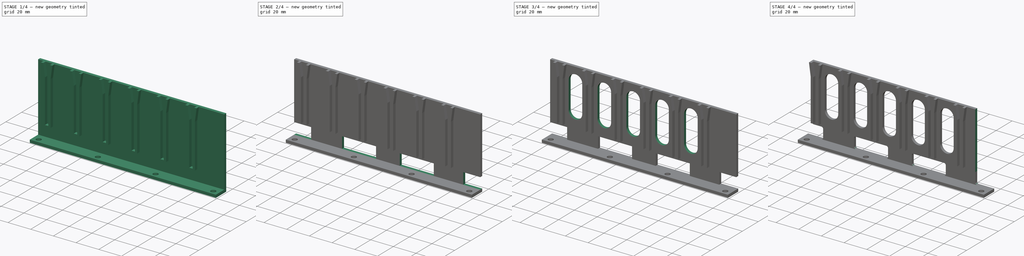
[diagram: build sequence overview — one tinted view per stage of 4, left to right]
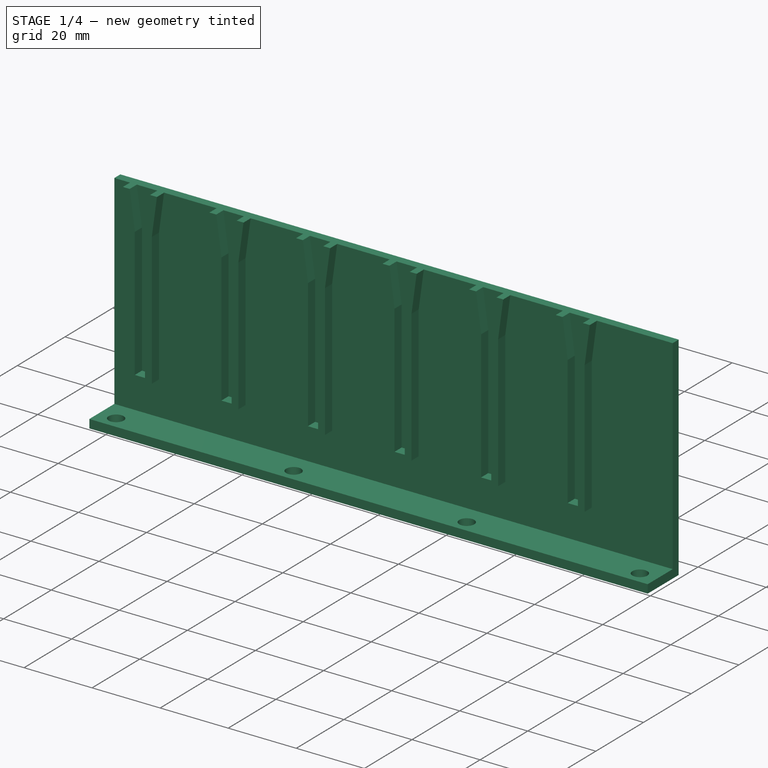
[diagram: stage 1 of 4 — iso view after this stage's code; geometry added in this stage tinted green]
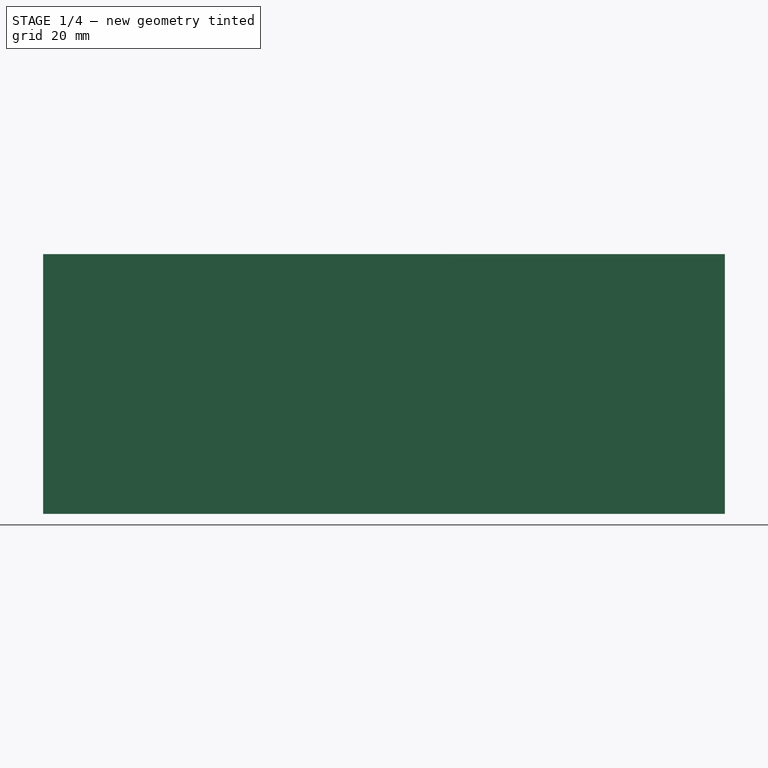
[diagram: stage 1 of 4 — front view after this stage's code; geometry added in this stage tinted green]
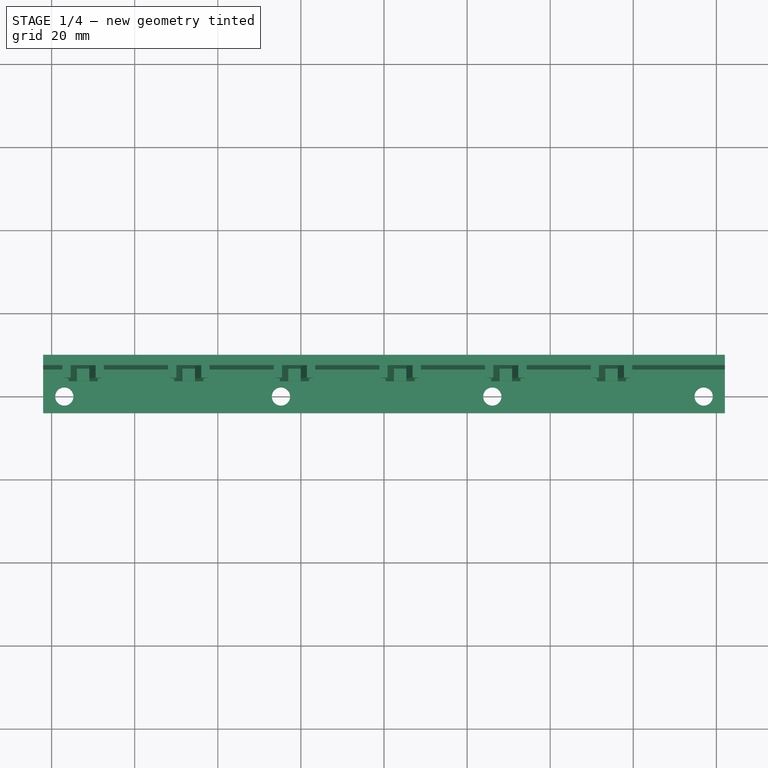
[diagram: stage 1 of 4 — top view after this stage's code; geometry added in this stage tinted green]
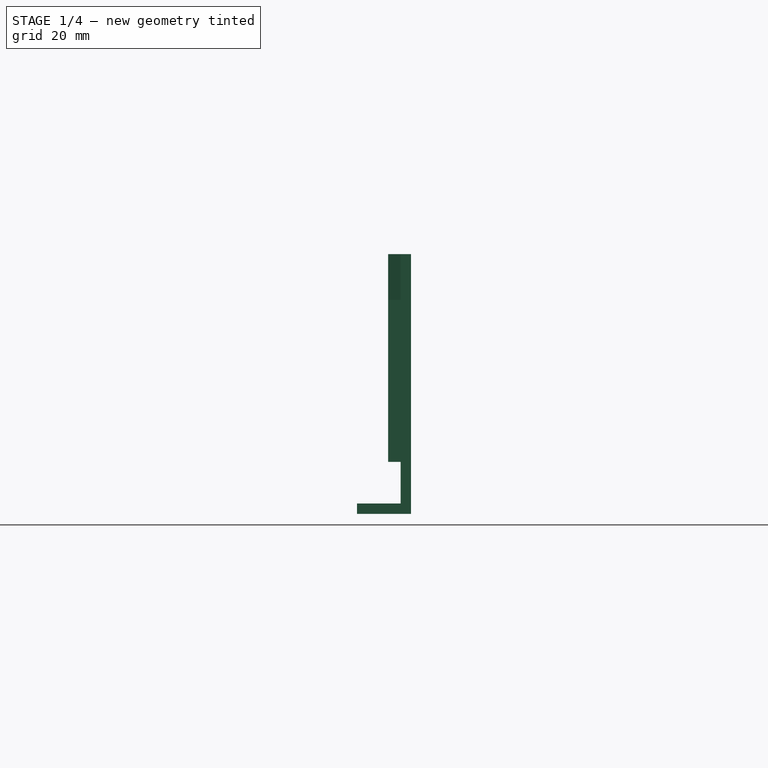
[diagram: stage 1 of 4 — right view after this stage's code; geometry added in this stage tinted green]
FCSTD DOCUMENT  (FreeCAD 0.16R6712 (Git))
Label: Taller Card Guide
License: All rights reserved
LicenseURL: http://en.wikipedia.org/wiki/All_rights_reserved
objects: Sketcher::SketchObject×6, PartDesign::Pocket×4, PartDesign::Pad×2, PartDesign::Fillet×2, Part::Feature×1, Part::FeaturePython×1, Part::MultiFuse×1, PartDesign::LinearPattern×1
note: 24 computed .brp shape members not serialized (recipe doc carries the construction recipe); baked Part::Feature solids carry a one-line shape summary decoded from their .brp

FEATURE [Sketcher::SketchObject] Sketch
  sketch-geometry (9):
    g0: LineSegment StartX=-82.0311 StartY=9 StartZ=0 EndX=82.0311 EndY=9 EndZ=0
    g1: LineSegment StartX=82.0311 StartY=9 StartZ=0 EndX=82.0311 EndY=-4 EndZ=0
    g2: LineSegment StartX=82.0311 StartY=-4 StartZ=0 EndX=-82.0311 EndY=-4 EndZ=0
    g3: LineSegment StartX=-82.0311 StartY=-4 StartZ=0 EndX=-82.0311 EndY=9 EndZ=0
    g4: LineSegment [constr] StartX=-82.0311 StartY=0 StartZ=0 EndX=82.0311 EndY=0 EndZ=0
    g5: Circle CenterX=-76.9439 CenterY=0 CenterZ=0 NormalX=0 NormalY=0 NormalZ=1 Radius=2.2
    g6: Circle CenterX=-24.8001 CenterY=0 CenterZ=0 NormalX=0 NormalY=0 NormalZ=1 Radius=2.2
    g7: Circle CenterX=26.0719 CenterY=0 CenterZ=0 NormalX=0 NormalY=0 NormalZ=1 Radius=2.2
    g8: Circle CenterX=76.9439 CenterY=0 CenterZ=0 NormalX=0 NormalY=0 NormalZ=1 Radius=2.2
  constraints (27):
    c: Coincident(g0,g1)
    c: Coincident(g1,g2)
    c: Coincident(g2,g3)
    c: Coincident(g3,g0)
    c: Horizontal(g0)
    c: Horizontal(g2)
    c: Vertical(g1)
    c: Vertical(g3)
    c: Perpendicular(g4,g3) = 1.5708
    c: PointOnObject(g4,g1)
    c: Equal(g5,g6)
    c: Equal(g6,g7)
    c: Equal(g7,g8)
    c: Radius(g5) = 2.2
    c: DistanceY(g4,g2) = -4
    c: PointOnObject(g5,g4)
    c: PointOnObject(g6,g4)
    c: PointOnObject(g7,g4)
    c: PointOnObject(g8,g4)
    c: Symmetric(g2,g1,g-2)
    c: PointOnObject(g4,g-1)
    c: DistanceY(g4,g0) = 9
    c: DistanceX(g5,g2) = -5.0872
    c: DistanceX(g6,g2) = -57.231
    c: DistanceX(g7,g2) = -108.103
    c: DistanceX(g8,g2) = -158.975
    c: DistanceX(g1,g8) = -5.0872
FEATURE [PartDesign::Pad] Pad
  Length = 2.5
  Length2 = 100
  Sketch = -> Sketch
  Type = 0
FEATURE [Sketcher::SketchObject] Sketch001
  ExternalGeometry = -> [Pad]
  Placement = pos=(0,0,2.5) rot=(0,0,1;0rad)
  Support = -> Pad [Face10]
  sketch-geometry (4):
    g0: LineSegment StartX=-82.0311 StartY=9 StartZ=0 EndX=82.0311 EndY=9 EndZ=0
    g1: LineSegment StartX=82.0311 StartY=9 StartZ=0 EndX=82.0311 EndY=6.5 EndZ=0
    g2: LineSegment StartX=82.0311 StartY=6.5 StartZ=0 EndX=-82.0311 EndY=6.5 EndZ=0
    g3: LineSegment StartX=-82.0311 StartY=6.5 StartZ=0 EndX=-82.0311 EndY=9 EndZ=0
  constraints (11):
    c: Coincident(g0,g1)
    c: Coincident(g1,g2)
    c: Coincident(g2,g3)
    c: Coincident(g3,g0)
    c: Horizontal(g0)
    c: Horizontal(g2)
    c: Vertical(g1)
    c: Vertical(g3)
    c: Distance(g1) = 2.5
    c: Coincident(g0,g-3)
    c: Symmetric(g0,g0,g-2)
FEATURE [PartDesign::Pad] Pad001
  Length = 60
  Length2 = 100
  Sketch = -> Sketch001
  Type = 0
FEATURE [Part::Feature] Part__Feature  label="Deeper Guide Vee"
  Placement = pos=(-72.4208,7.5,13.5) rot=(0,0,1;0rad)
  shape: bbox 10 x 4 x 50 mm, 14 faces (baked)
FEATURE [Part::FeaturePython] Array  # Draft array (typed FeaturePython)
  Angle = 360
  ArrayType = 0
  Axis = (0,0,1)
  Base = -> Part__Feature
  Center = (0,0,0)
  Fuse = false
  IntervalAxis = (0,0,0)
  IntervalX = (25.436,0,0)
  IntervalY = (0,1,0)
  IntervalZ = (0,0,0)
  NumberPolar = 1
  NumberX = 6
  NumberY = 1
  NumberZ = 1
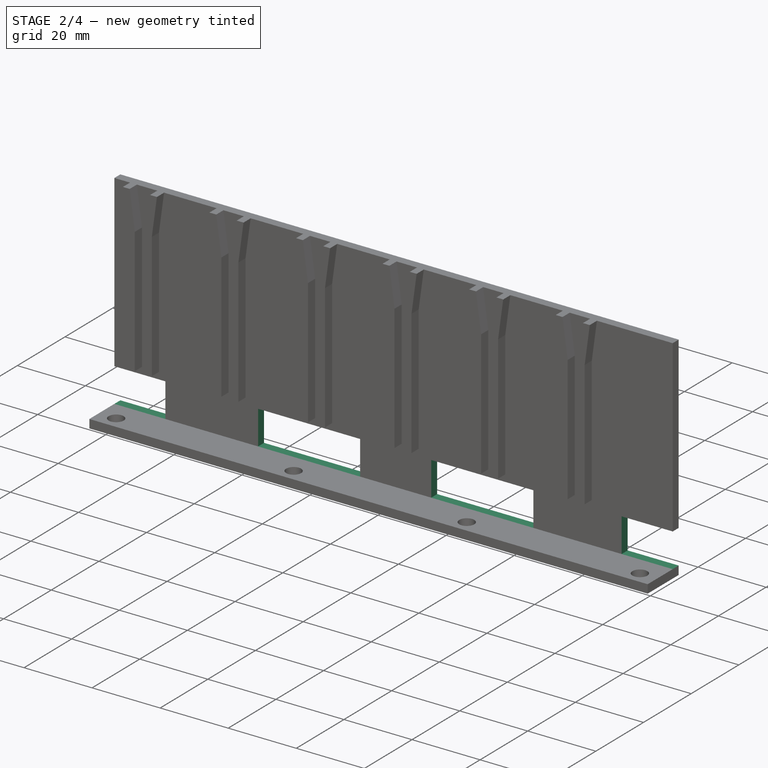
[diagram: stage 2 of 4 — iso view after this stage's code; geometry added in this stage tinted green]
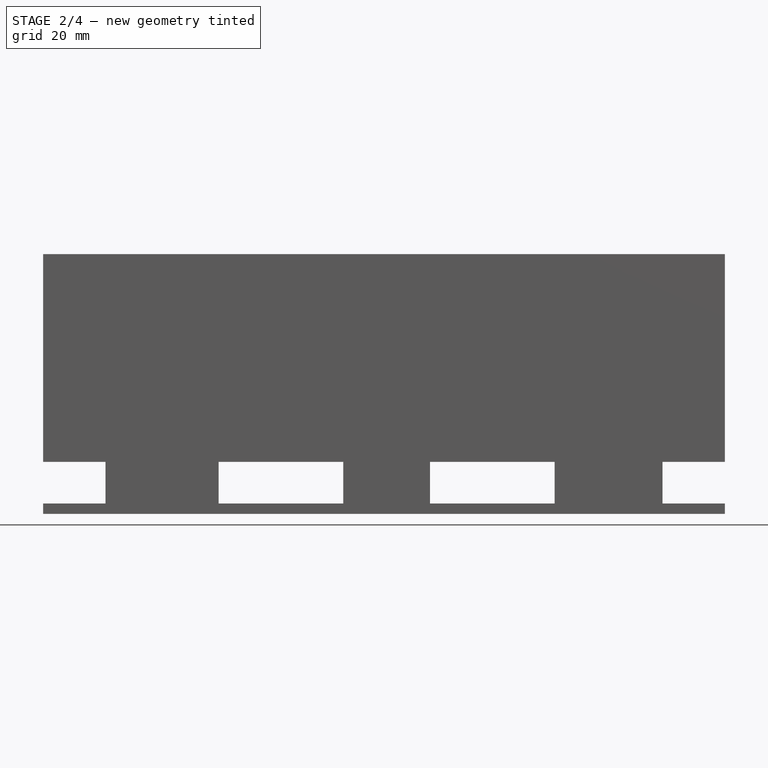
[diagram: stage 2 of 4 — front view after this stage's code; geometry added in this stage tinted green]
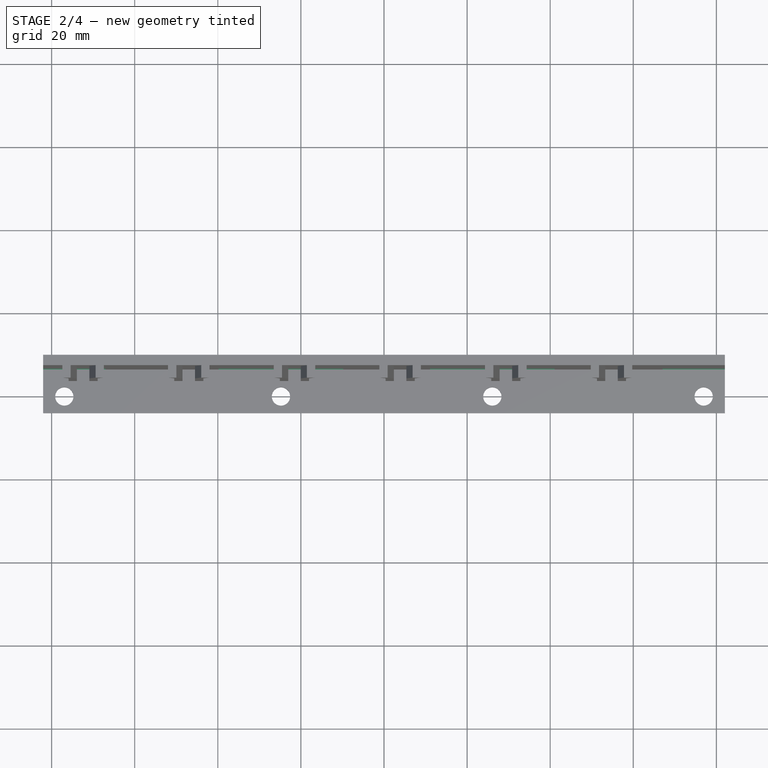
[diagram: stage 2 of 4 — top view after this stage's code; geometry added in this stage tinted green]
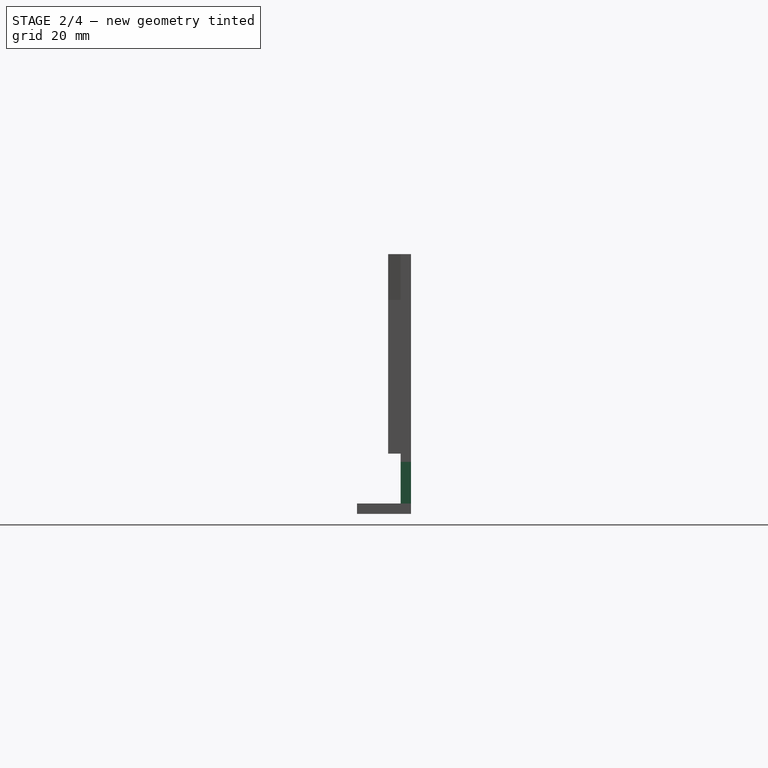
[diagram: stage 2 of 4 — right view after this stage's code; geometry added in this stage tinted green]
FEATURE [Sketcher::SketchObject] Sketch002
  ExternalGeometry = -> [Pad001]
  Placement = pos=(0,6.5,0) rot=(1,0,0;1.5708rad)
  Support = -> Pad001 [Face15]
  sketch-geometry (20):
    g0: LineSegment StartX=67.0311 StartY=12.5 StartZ=0 EndX=97.0311 EndY=12.5 EndZ=0
    g1: LineSegment StartX=97.0311 StartY=12.5 StartZ=0 EndX=97.0311 EndY=2.5 EndZ=0
    g2: LineSegment StartX=97.0311 StartY=2.5 StartZ=0 EndX=67.0311 EndY=2.5 EndZ=0
    g3: LineSegment StartX=67.0311 StartY=2.5 StartZ=0 EndX=67.0311 EndY=12.5 EndZ=0
    g4: LineSegment StartX=11.0719 StartY=12.5 StartZ=0 EndX=41.0719 EndY=12.5 EndZ=0
    g5: LineSegment StartX=41.0719 StartY=12.5 StartZ=0 EndX=41.0719 EndY=2.5 EndZ=0
    g6: LineSegment StartX=41.0719 StartY=2.5 StartZ=0 EndX=11.0719 EndY=2.5 EndZ=0
    g7: LineSegment StartX=11.0719 StartY=2.5 StartZ=0 EndX=11.0719 EndY=12.5 EndZ=0
    g8: LineSegment StartX=-39.8001 StartY=12.5 StartZ=0 EndX=-9.8001 EndY=12.5 EndZ=0
    g9: LineSegment StartX=-9.8001 StartY=12.5 StartZ=0 EndX=-9.8001 EndY=2.5 EndZ=0
    g10: LineSegment StartX=-9.8001 StartY=2.5 StartZ=0 EndX=-39.8001 EndY=2.5 EndZ=0
    g11: LineSegment StartX=-39.8001 StartY=2.5 StartZ=0 EndX=-39.8001 EndY=12.5 EndZ=0
    g12: LineSegment StartX=-97.0311 StartY=12.5 StartZ=0 EndX=-67.0311 EndY=12.5 EndZ=0
    g13: LineSegment StartX=-67.0311 StartY=12.5 StartZ=0 EndX=-67.0311 EndY=2.5 EndZ=0
    g14: LineSegment StartX=-67.0311 StartY=2.5 StartZ=0 EndX=-97.0311 EndY=2.5 EndZ=0
    g15: LineSegment StartX=-97.0311 StartY=2.5 StartZ=0 EndX=-97.0311 EndY=12.5 EndZ=0
    g16: LineSegment [constr] StartX=26.0719 StartY=12.5 StartZ=0 EndX=26.0719 EndY=2.5 EndZ=0
    g17: LineSegment [constr] StartX=-24.8001 StartY=12.5 StartZ=0 EndX=-24.8001 EndY=2.5 EndZ=0
    g18: LineSegment [constr] StartX=-82.0311 StartY=12.5 StartZ=0 EndX=-82.0311 EndY=2.5 EndZ=0
    g19: LineSegment [constr] StartX=82.0311 StartY=12.5 StartZ=0 EndX=82.0311 EndY=2.5 EndZ=0
  constraints (59):
    c: Coincident(g0,g1)
    c: Coincident(g1,g2)
    c: Coincident(g2,g3)
    c: Coincident(g3,g0)
    c: Horizontal(g0)
    c: Horizontal(g2)
    c: Vertical(g1)
    c: Vertical(g3)
    c: Distance(g0) = 30
    c: Distance(g3) = 10
    c: Coincident(g4,g5)
    c: Coincident(g5,g6)
    c: Coincident(g6,g7)
    c: Coincident(g7,g4)
    c: Horizontal(g4)
    c: Horizontal(g6)
    c: Vertical(g5)
    c: Vertical(g7)
    c: Coincident(g8,g9)
    c: Coincident(g9,g10)
    c: Coincident(g10,g11)
    c: Coincident(g11,g8)
    c: Horizontal(g8)
    c: Horizontal(g10)
    c: Vertical(g9)
    c: Vertical(g11)
    c: Coincident(g12,g13)
    c: Coincident(g13,g14)
    c: Coincident(g14,g15)
    c: Coincident(g15,g12)
    c: Horizontal(g12)
    c: Horizontal(g14)
    c: Vertical(g13)
    c: Vertical(g15)
    c: Equal(g3,g7)
    c: Equal(g7,g11)
    c: Equal(g11,g15)
    c: Equal(g0,g4)
    c: Equal(g4,g8)
    c: Equal(g8,g12)
    c: Perpendicular(g16,g6) = 4.71239
    c: Perpendicular(g17,g10) = 4.71239
    c: Perpendicular(g18,g14) = 4.71239
    c: PointOnObject(g18,g12)
    c: PointOnObject(g17,g8)
    c: PointOnObject(g16,g4)
    c: Symmetric(g6,g5,g16)
    c: Symmetric(g9,g10,g17)
    c: Symmetric(g14,g13,g18)
    c: DistanceX(g17,g16) = 50.872
    c: Perpendicular(g19,g2) = 4.71239
    c: PointOnObject(g19,g0)
    c: Symmetric(g1,g2,g19)
    c: Coincident(g19,g-3)
    c: PointOnObject(g16,g-3)
    c: PointOnObject(g17,g-3)
    c: PointOnObject(g18,g-3)
    c: Coincident(g18,g-3)
    c: DistanceX(g19,g16) = -55.9592
FEATURE [PartDesign::Pocket] Pocket
  Length = 5
  Sketch = -> Sketch002
  Type = 1
FEATURE [Part::MultiFuse] Fusion
  Shapes = -> [Pocket,Array]
FEATURE [Sketcher::SketchObject] Sketch003
  ExternalGeometry = -> [Fusion]
  Placement = pos=(-75.9208,0,0) rot=(0.57735,-0.57735,-0.57735;2.0944rad)
  Support = -> Fusion [Face80]
  sketch-geometry (4):
    g0: LineSegment StartX=-6.5 StartY=14.5 StartZ=0 EndX=-3.5 EndY=14.5 EndZ=0
    g1: LineSegment StartX=-3.5 StartY=14.5 StartZ=0 EndX=-3.5 EndY=12.5 EndZ=0
    g2: LineSegment StartX=-3.5 StartY=12.5 StartZ=0 EndX=-6.5 EndY=12.5 EndZ=0
    g3: LineSegment StartX=-6.5 StartY=12.5 StartZ=0 EndX=-6.5 EndY=14.5 EndZ=0
  constraints (11):
    c: Coincident(g0,g1)
    c: Coincident(g1,g2)
    c: Coincident(g2,g3)
    c: Coincident(g3,g0)
    c: Horizontal(g0)
    c: Horizontal(g2)
    c: Vertical(g1)
    c: Vertical(g3)
    c: DistanceY(g1) = -2
    c: Coincident(g2,g-3)
    c: Coincident(g-3,g1)
FEATURE [PartDesign::Pocket] Pocket001
  Length = 5
  Sketch = -> Sketch003
  Type = 1
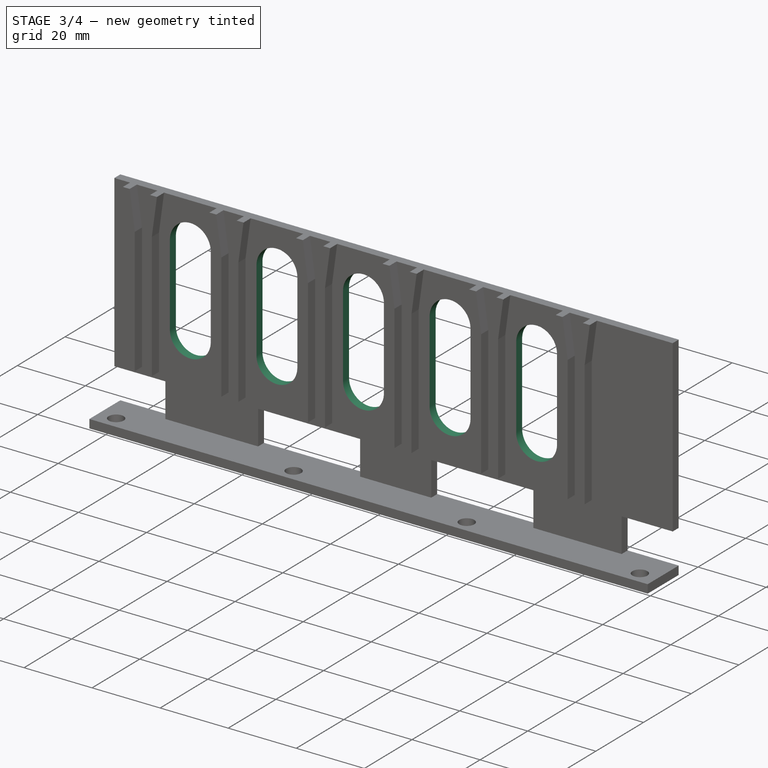
[diagram: stage 3 of 4 — iso view after this stage's code; geometry added in this stage tinted green]
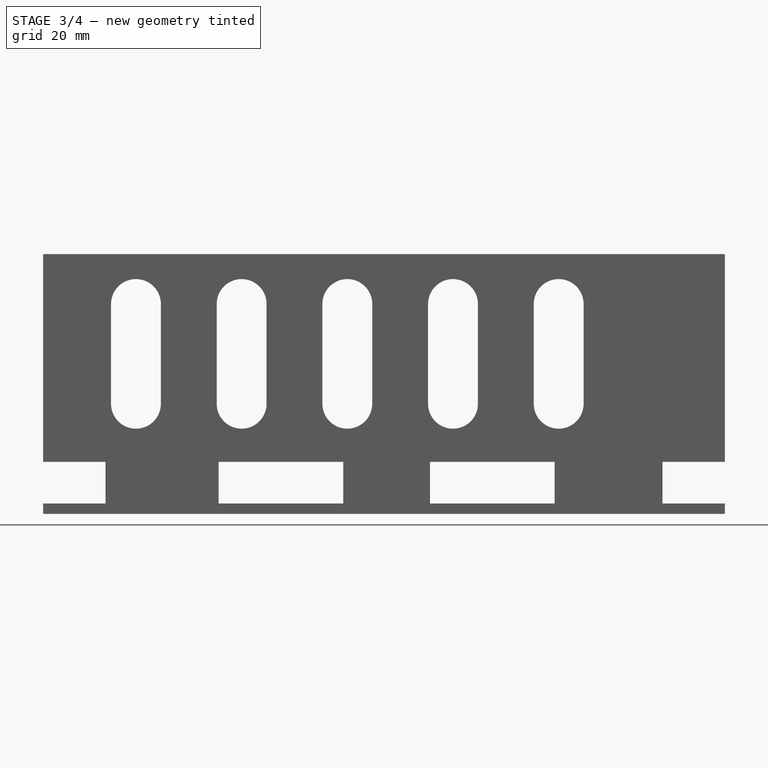
[diagram: stage 3 of 4 — front view after this stage's code; geometry added in this stage tinted green]
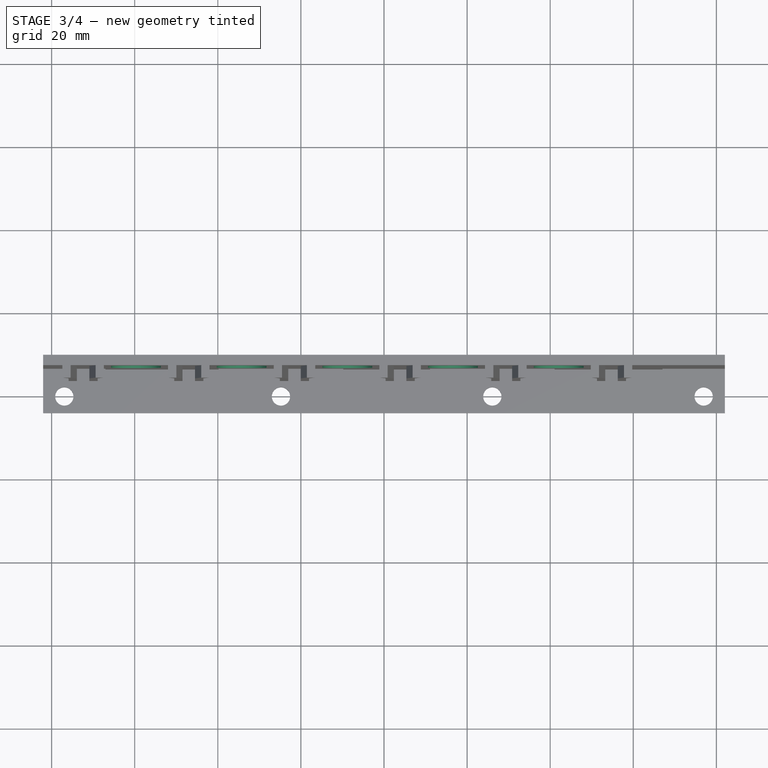
[diagram: stage 3 of 4 — top view after this stage's code; geometry added in this stage tinted green]
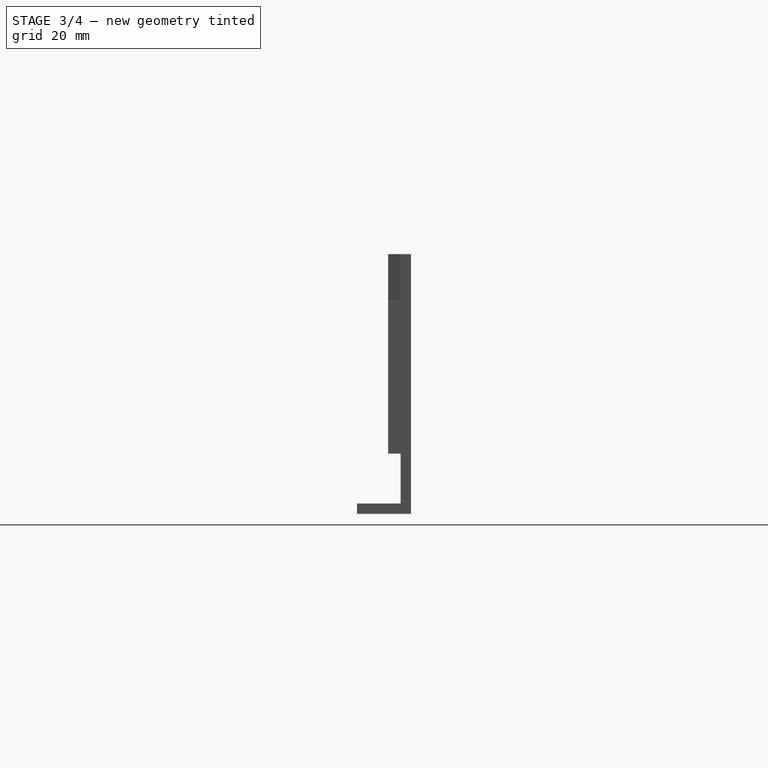
[diagram: stage 3 of 4 — right view after this stage's code; geometry added in this stage tinted green]
FEATURE [Sketcher::SketchObject] Sketch004
  ExternalGeometry = -> [Pocket001]
  Placement = pos=(0,6.5,0) rot=(1,0,0;1.5708rad)
  Support = -> Pocket001 [Face62]
  sketch-geometry (5):
    g0: ArcOfCircle CenterX=-59.7028 CenterY=50.5 CenterZ=0 NormalX=0 NormalY=0 NormalZ=1 Radius=6 StartAngle=0 EndAngle=3.14159
    g1: ArcOfCircle CenterX=-59.7028 CenterY=26.5 CenterZ=0 NormalX=0 NormalY=0 NormalZ=1 Radius=6 StartAngle=3.14159 EndAngle=6.28319
    g2: LineSegment StartX=-65.7028 StartY=50.5 StartZ=0 EndX=-65.7028 EndY=26.5 EndZ=0
    g3: LineSegment StartX=-53.7028 StartY=50.5 StartZ=0 EndX=-53.7028 EndY=26.5 EndZ=0
    g4: LineSegment [constr] StartX=-59.7028 StartY=50.5 StartZ=0 EndX=-59.7028 EndY=26.5 EndZ=0
  constraints (12):
    c: Tangent(g0,g3) = 1.5708
    c: Tangent(g0,g2) = -1.5708
    c: Tangent(g2,g1) = -1.5708
    c: Tangent(g3,g1) = 1.5708
    c: Vertical(g2)
    c: Equal(g0,g1)
    c: Radius(g0) = 6
    c: Coincident(g4,g0)
    c: Coincident(g1,g4)
    c: Symmetric(g-4,g-3,g4)
    c: DistanceY(g-5,g1) = 12
    c: DistanceY(g0,g-6) = 12
FEATURE [PartDesign::Pocket] Pocket002
  Length = 5
  Sketch = -> Sketch004
  Type = 1
FEATURE [PartDesign::LinearPattern] LinearPattern
  Direction = -> Sketch004 [H_Axis]
  Length = 101.744
  Occurrences = 5
  Originals = -> [Pocket002]
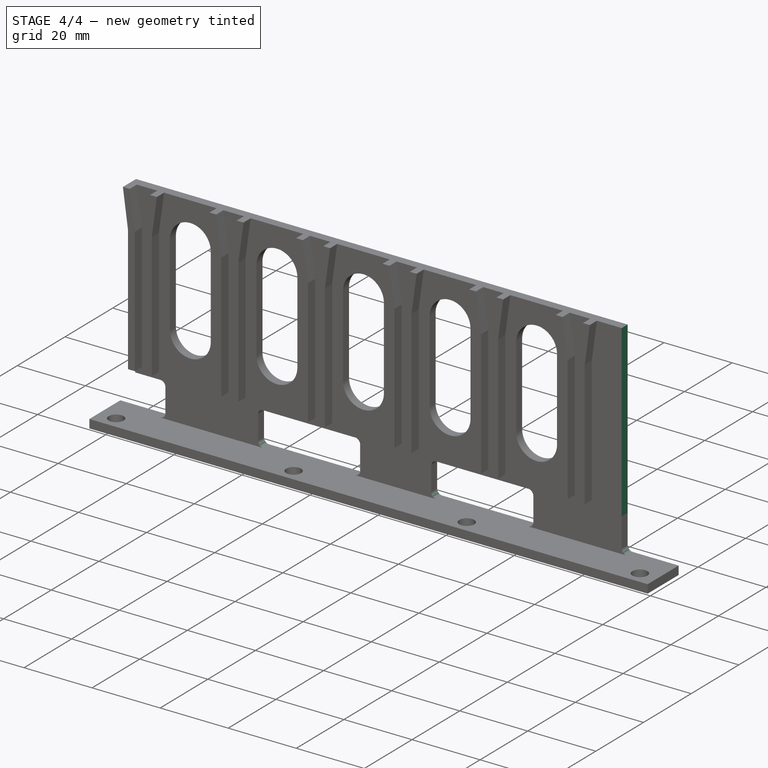
[diagram: stage 4 of 4 — iso view after this stage's code; geometry added in this stage tinted green]
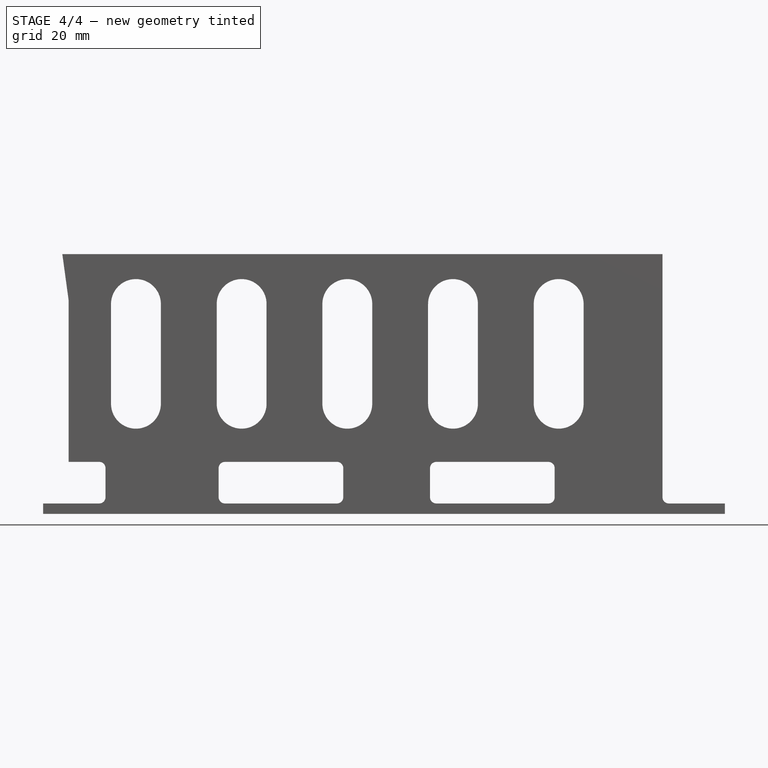
[diagram: stage 4 of 4 — front view after this stage's code; geometry added in this stage tinted green]
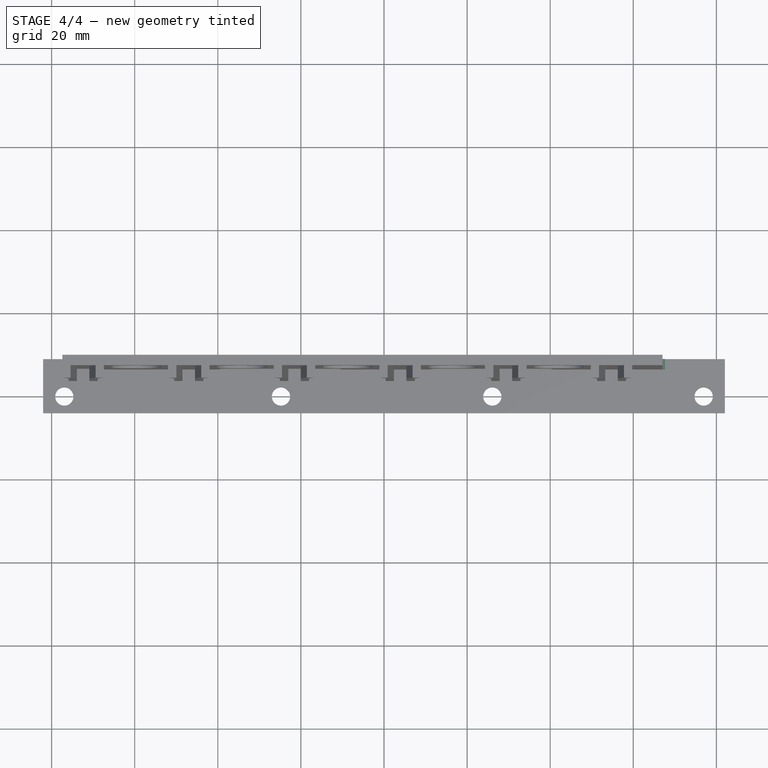
[diagram: stage 4 of 4 — top view after this stage's code; geometry added in this stage tinted green]
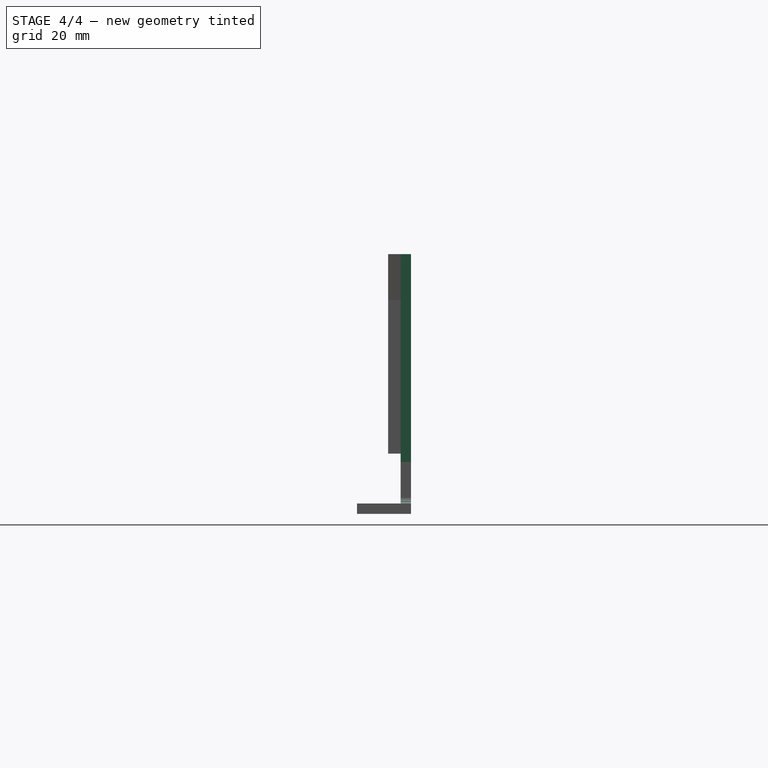
[diagram: stage 4 of 4 — right view after this stage's code; geometry added in this stage tinted green]
FEATURE [Sketcher::SketchObject] Sketch005
  ExternalGeometry = -> [LinearPattern]
  Placement = pos=(0,6.5,0) rot=(1,0,0;1.5708rad)
  Support = -> LinearPattern [Face52]
  sketch-geometry (9):
    g0: LineSegment StartX=-82.0311 StartY=12.5 StartZ=0 EndX=-75.9208 EndY=12.5 EndZ=0
    g1: LineSegment StartX=-75.9208 StartY=12.5 StartZ=0 EndX=-75.9208 EndY=51.5 EndZ=0
    g2: LineSegment StartX=-75.9208 StartY=51.5 StartZ=0 EndX=-77.4208 EndY=62.5 EndZ=0
    g3: LineSegment StartX=-77.4208 StartY=62.5 StartZ=0 EndX=-82.0311 EndY=62.5 EndZ=0
    g4: LineSegment StartX=-82.0311 StartY=62.5 StartZ=0 EndX=-82.0311 EndY=12.5 EndZ=0
    g5: LineSegment StartX=67.0311 StartY=62.5 StartZ=0 EndX=82.0311 EndY=62.5 EndZ=0
    g6: LineSegment StartX=82.0311 StartY=62.5 StartZ=0 EndX=82.0311 EndY=12.5 EndZ=0
    g7: LineSegment StartX=82.0311 StartY=12.5 StartZ=0 EndX=67.0311 EndY=12.5 EndZ=0
    g8: LineSegment StartX=67.0311 StartY=12.5 StartZ=0 EndX=67.0311 EndY=62.5 EndZ=0
  constraints (20):
    c: Coincident(g0,g1)
    c: Coincident(g1,g2)
    c: Coincident(g2,g3)
    c: Coincident(g3,g4)
    c: Coincident(g0,g4)
    c: Coincident(g0,g-7)
    c: Coincident(g-3,g0)
    c: Coincident(g1,g-5)
    c: Coincident(g2,g-4)
    c: Coincident(g-6,g3)
    c: Coincident(g5,g6)
    c: Coincident(g6,g7)
    c: Coincident(g7,g8)
    c: Coincident(g8,g5)
    c: Horizontal(g5)
    c: Horizontal(g7)
    c: Vertical(g6)
    c: Vertical(g8)
    c: Coincident(g-9,g5)
    c: Coincident(g-8,g7)
FEATURE [PartDesign::Pocket] Pocket003
  Length = 5
  Sketch = -> Sketch005
  Type = 1
FEATURE [PartDesign::Fillet] Fillet
  Base = -> Pocket003 [Edge34,Edge72,Edge75,Edge69,Edge74,Edge71]
  Radius = 1.5
FEATURE [PartDesign::Fillet] Fillet001
  Base = -> Fillet [Edge96,Edge168,Edge178,Edge182,Edge162]
  Radius = 1.5
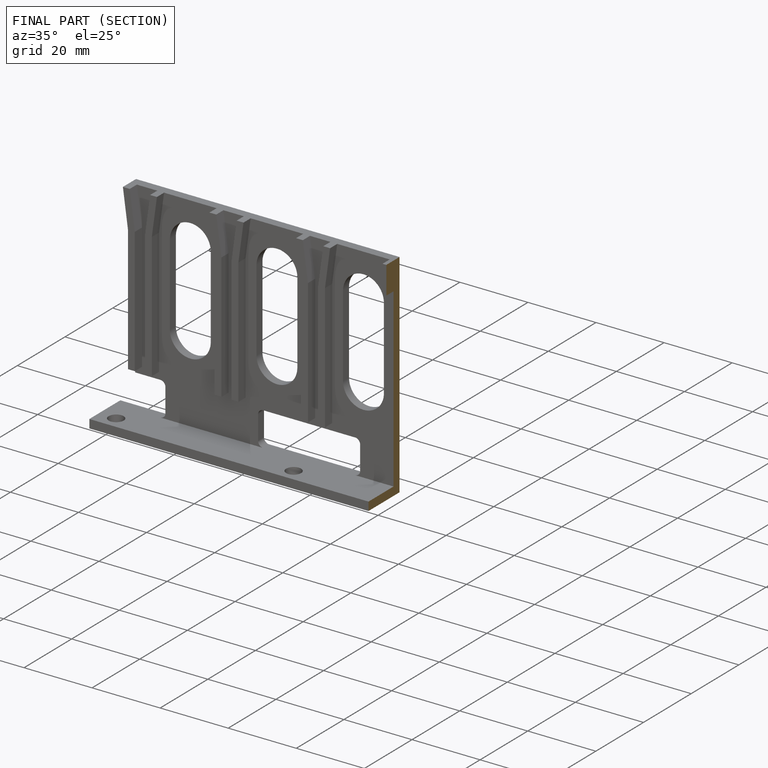
[diagram: finished part — half-section view (interior)]
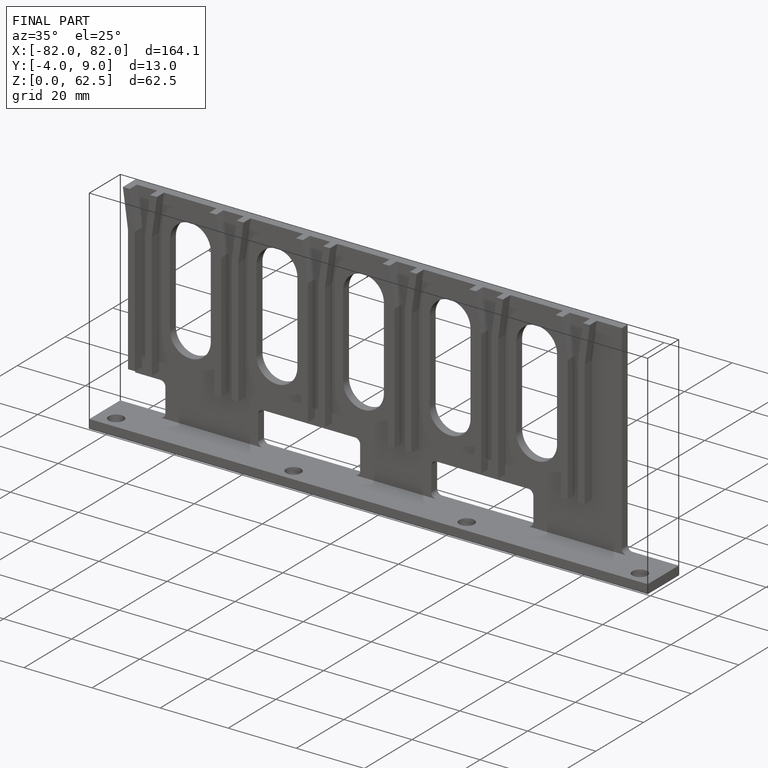
[diagram: finished part — iso view with bounding-box wireframe]
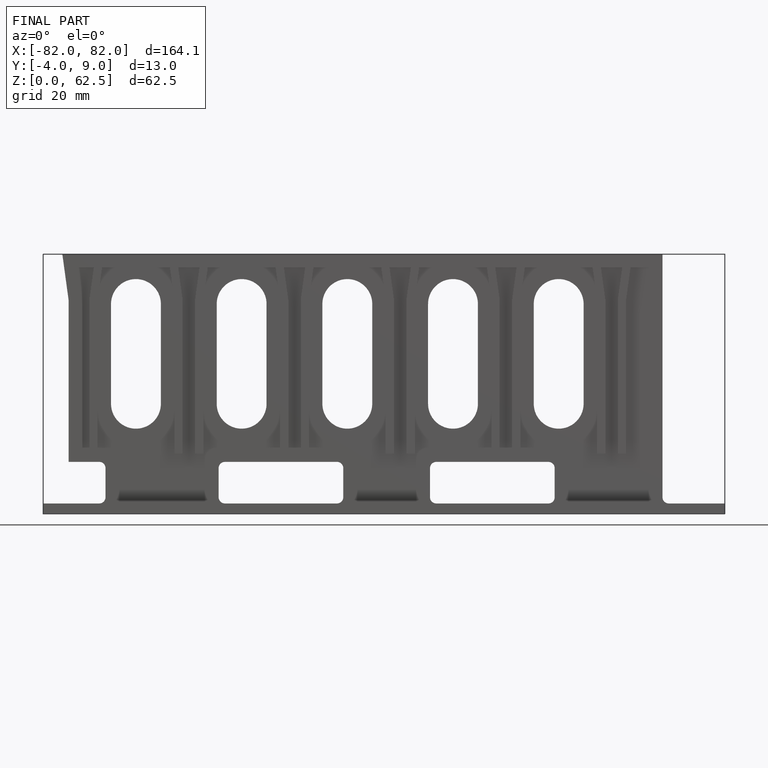
[diagram: finished part — front view with bounding-box wireframe]
